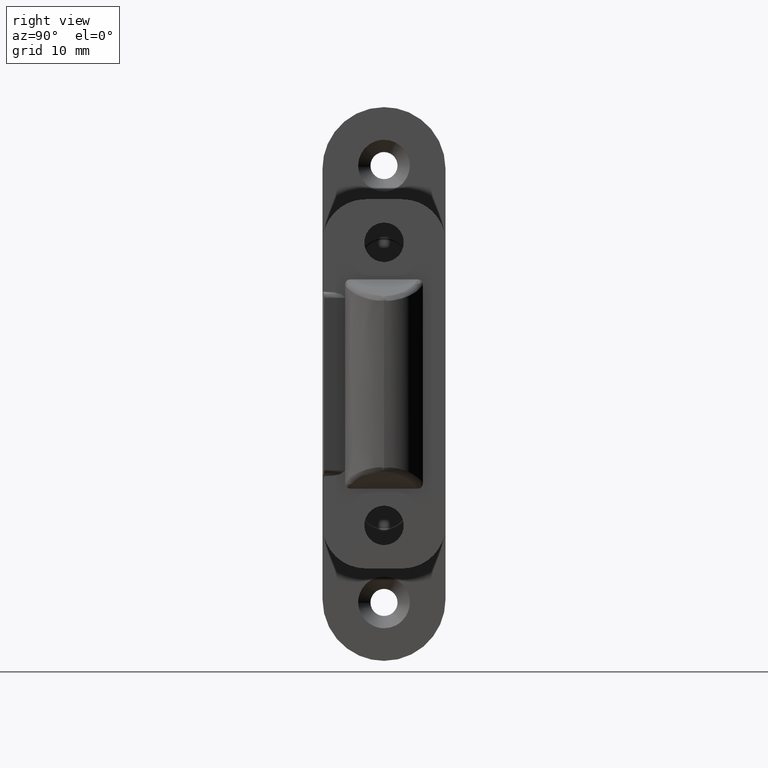
[diagram: clean part render]
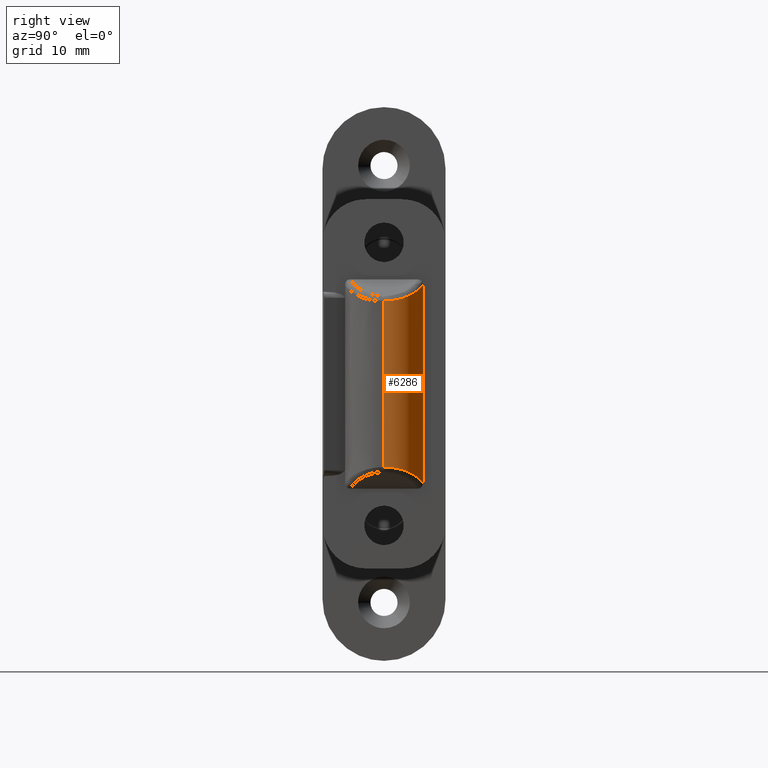
[diagram: same view with one face highlighted and labeled with its STEP entity id]
A machine part, right view. The second image highlights one B-rep face of the part: STEP entity #6286.
In plain terms, the highlighted face is a freeform B-spline surface patch.
Its self-contained STEP definition (entity closure, byte-faithful):
#5661=CARTESIAN_POINT('',(53.745713657531901,-0.000045339831506,13.499977999999899));
#5662=VERTEX_POINT('',#5661);
#5672=CARTESIAN_POINT('',(49.745713657531901,6.324555320336670,16.071406095241951));
#5673=VERTEX_POINT('',#5672);
#5674=CARTESIAN_POINT('',(49.745713657531901,6.324555320336670,16.071406095241951));
#5675=CARTESIAN_POINT('',(53.745713657531901,4.427163660235761,13.499977999999910));
#5676=CARTESIAN_POINT('',(53.745713657531901,-0.000045339831506,13.499977999999899));
#5684=(BOUNDED_CURVE()B_SPLINE_CURVE(2,(#5674,#5675,#5676),.UNSPECIFIED.,.F.,.U.)CURVE()GEOMETRIC_REPRESENTATION_ITEM()QUASI_UNIFORM_CURVE()RATIONAL_B_SPLINE_CURVE((1.0,0.845154254728516,1.0))REPRESENTATION_ITEM(''));
#5685=EDGE_CURVE('',#5673,#5662,#5684,.T.);
#6017=CARTESIAN_POINT('',(53.745713657531901,-0.000045339831506,-13.499969000000030));
#6018=VERTEX_POINT('',#6017);
#6199=CARTESIAN_POINT('',(49.745713657531901,6.324555320336670,-16.071397809519699));
#6200=VERTEX_POINT('',#6199);
#6228=CARTESIAN_POINT('',(53.745713657531901,-0.000045339831506,-13.499969000000030));
#6229=CARTESIAN_POINT('',(53.745713657531908,4.427163660234570,-13.499969000000034));
#6230=CARTESIAN_POINT('',(49.745713657531901,6.324555320336670,-16.071397809519699));
#6238=(BOUNDED_CURVE()B_SPLINE_CURVE(2,(#6228,#6229,#6230),.UNSPECIFIED.,.F.,.U.)CURVE()GEOMETRIC_REPRESENTATION_ITEM()QUASI_UNIFORM_CURVE()RATIONAL_B_SPLINE_CURVE((1.0,0.845154254728517,1.0))REPRESENTATION_ITEM(''));
#6239=EDGE_CURVE('',#6018,#6200,#6238,.T.);
#6258=CARTESIAN_POINT('',(49.579128074767823,6.400918898111306,-16.874967907138739));
#6259=CARTESIAN_POINT('',(49.579128074767823,6.400918898111306,16.895065445301459));
#6260=CARTESIAN_POINT('',(53.978357750992998,4.453567121317775,-16.874967907138746));
#6261=CARTESIAN_POINT('',(53.978357750992998,4.453567121317775,16.895065445301459));
#6262=CARTESIAN_POINT('',(53.736891167321673,-0.351336059364563,-16.874967907138739));
#6263=CARTESIAN_POINT('',(53.736891167321673,-0.351336059364563,16.895065445301459));
#6271=(BOUNDED_SURFACE()B_SPLINE_SURFACE(1,2,((#6258,#6260,#6262),(#6259,#6261,#6263)),.UNSPECIFIED.,.F.,.F.,.U.)B_SPLINE_SURFACE_WITH_KNOTS((2,2),(3,3),(0.0,33.770033352440208),(0.0,8.694231096959248),.UNSPECIFIED.)GEOMETRIC_REPRESENTATION_ITEM()RATIONAL_B_SPLINE_SURFACE(((1.0,0.824126188622016,1.0),(1.0,0.824126188622016,1.0)))REPRESENTATION_ITEM('')SURFACE());
#6272=CARTESIAN_POINT('',(49.745713657531901,6.324555320336670,-16.071397809519699));
#6273=CARTESIAN_POINT('',(49.745713657531901,6.324555320336670,16.071406095241951));
#6274=QUASI_UNIFORM_CURVE('',1,(#6272,#6273),.UNSPECIFIED.,.F.,.U.);
#6275=EDGE_CURVE('',#6200,#5673,#6274,.T.);
#6276=ORIENTED_EDGE('',*,*,#6275,.T.);
#6277=ORIENTED_EDGE('',*,*,#5685,.T.);
#6278=CARTESIAN_POINT('',(53.745713657531901,-0.000045339831506,-13.499969000000030));
#6279=CARTESIAN_POINT('',(53.745713657531901,-0.000045339831506,13.499977999999899));
#6280=QUASI_UNIFORM_CURVE('',1,(#6278,#6279),.UNSPECIFIED.,.F.,.U.);
#6281=EDGE_CURVE('',#6018,#5662,#6280,.T.);
#6282=ORIENTED_EDGE('',*,*,#6281,.F.);
#6283=ORIENTED_EDGE('',*,*,#6239,.T.);
#6284=EDGE_LOOP('',(#6276,#6277,#6282,#6283));
#6285=FACE_OUTER_BOUND('',#6284,.T.);
#6286=ADVANCED_FACE('',(#6285),#6271,.T.);